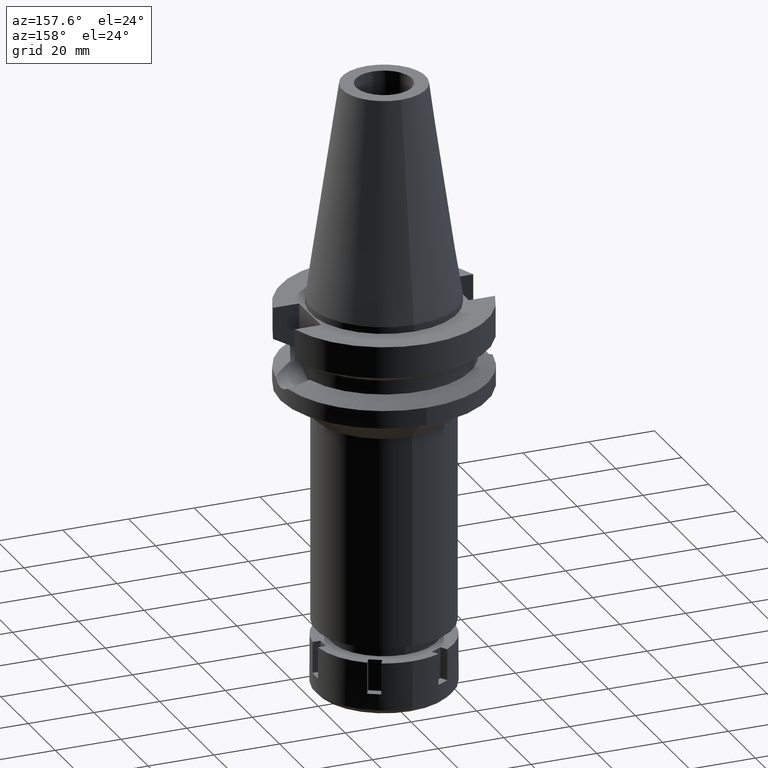
[diagram: clean part render]
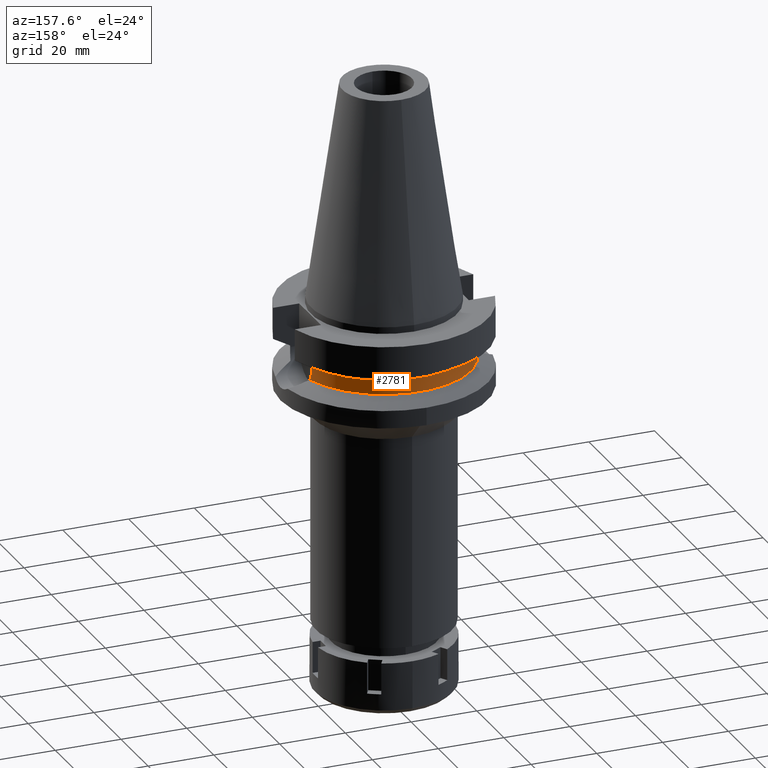
[diagram: same view with one face highlighted and labeled with its STEP entity id]
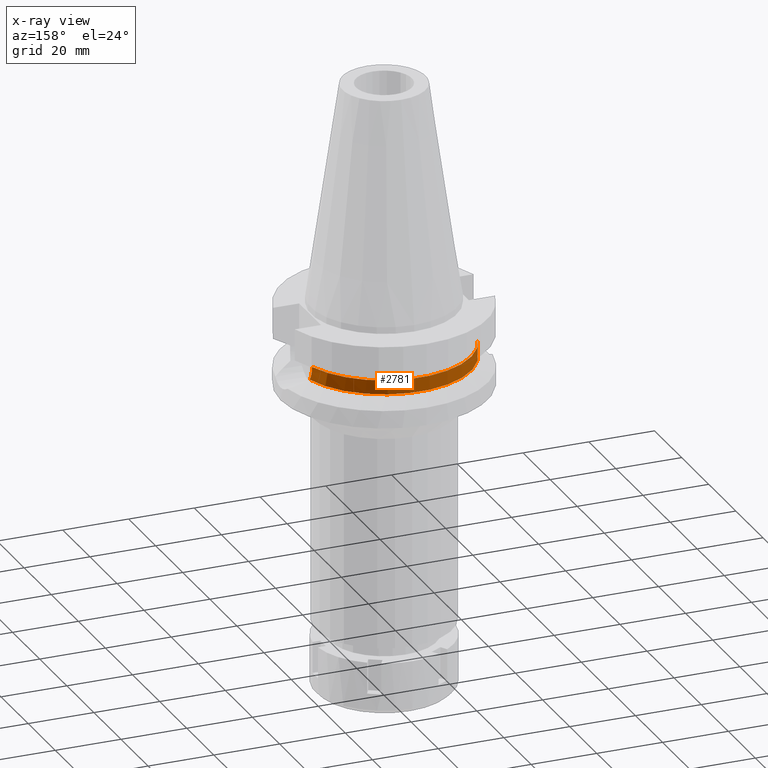
[diagram: x-ray of the same camera — body ghosted, the highlighted face saturated]
A machine part, auxiliary view. The second image highlights one B-rep face of the part: STEP entity #2781.
The next image is the same camera in x-ray: the body ghosted, the highlighted face saturated — about 0% of this face is hidden behind the body in this view.
In plain terms, the highlighted cylindrical surface (partial cylindrical patch) has radius 26.5 mm, axis along (0, 0, -1).
Its self-contained STEP definition (entity closure, byte-faithful):
#33 = CARTESIAN_POINT ( 'NONE',  ( -25.24772266957999634, 8.050000000000018474, -15.26991016306199889 ) ) ;
#119 = ORIENTED_EDGE ( 'NONE', *, *, #1772, .F. ) ;
#138 = ORIENTED_EDGE ( 'NONE', *, *, #2373, .F. ) ;
#217 = VERTEX_POINT ( 'NONE', #2614 ) ;
#226 = DIRECTION ( 'NONE',  ( 0.0000000000000000000, 0.0000000000000000000, -1.000000000000000000 ) ) ;
#251 = FACE_OUTER_BOUND ( 'NONE', #1245, .T. ) ;
#270 = CARTESIAN_POINT ( 'NONE',  ( 25.39161474380841099, 7.584925632688388042, -17.65165132602217213 ) ) ;
#313 = VERTEX_POINT ( 'NONE', #2858 ) ;
#373 = CARTESIAN_POINT ( 'NONE',  ( 25.24772413116000180, 8.049995415955999434, -14.45229202668999946 ) ) ;
#456 = CIRCLE ( 'NONE', #3395, 26.50000000000000000 ) ;
#509 = LINE ( 'NONE', #1957, #1565 ) ;
#534 = DIRECTION ( 'NONE',  ( 0.0000000000000000000, -1.000000000000000000, 0.0000000000000000000 ) ) ;
#568 = CARTESIAN_POINT ( 'NONE',  ( 25.34384339545047737, 7.742469616379023201, -17.15619314850085431 ) ) ;
#576 = CARTESIAN_POINT ( 'NONE',  ( -25.31950825842964292, 7.821518470895145292, -16.85441217854224405 ) ) ;
#650 = EDGE_CURVE ( 'NONE', #217, #1001, #509, .T. ) ;
#773 = CARTESIAN_POINT ( 'NONE',  ( 25.27267991477270215, 7.973333693868347005, -16.24500092433180498 ) ) ;
#789 = CARTESIAN_POINT ( 'NONE',  ( 25.35408314255054663, 7.708964442631086378, -17.26963666352914117 ) ) ;
#834 = CARTESIAN_POINT ( 'NONE',  ( 0.0000000000000000000, 1.065333950388000029E-14, -14.45225699861000024 ) ) ;
#840 = CARTESIAN_POINT ( 'NONE',  ( 25.24772266958000344, 8.050000000000000711, -14.94999999999999929 ) ) ;
#875 = VERTEX_POINT ( 'NONE', #3472 ) ;
#882 = CARTESIAN_POINT ( 'NONE',  ( -25.24772266958000344, 8.050000000000000711, -14.94999999999999929 ) ) ;
#974 = CARTESIAN_POINT ( 'NONE',  ( 0.0000000000000000000, 0.0000000000000000000, -18.74774300138999905 ) ) ;
#980 = CARTESIAN_POINT ( 'NONE',  ( -25.53175183775000079, 7.097862220092999941, -18.74774300138999905 ) ) ;
#1001 = VERTEX_POINT ( 'NONE', #373 ) ;
#1124 = EDGE_CURVE ( 'NONE', #3180, #1001, #1574, .T. ) ;
#1134 = EDGE_CURVE ( 'NONE', #3180, #875, #3337, .T. ) ;
#1157 = CARTESIAN_POINT ( 'NONE',  ( -25.29452346095225934, 7.902092865018188306, -16.48827265655966201 ) ) ;
#1216 = ORIENTED_EDGE ( 'NONE', *, *, #1134, .F. ) ;
#1245 = EDGE_LOOP ( 'NONE', ( #3296, #2399, #119, #2432, #138, #1216 ) ) ;
#1294 = CARTESIAN_POINT ( 'NONE',  ( -25.24772216385000334, 8.050001586148999522, -14.45224487904000021 ) ) ;
#1390 = B_SPLINE_CURVE_WITH_KNOTS ( 'NONE', 3,
 ( #3630, #1902, #2551, #270, #3310, #789, #568, #1415, #2751, #3294, #1960, #773, #2237, #840 ),
 .UNSPECIFIED., .F., .F.,
 ( 4, 2, 2, 1, 1, 2, 2, 4 ),
 ( 0.0000000000000000000, 0.2500000000000011657, 0.3750000000000028311, 0.4375000000000037748, 0.4687500000000027756, 0.4843750000000024425, 0.5000000000000019984, 1.000000000000000000 ),
 .UNSPECIFIED. ) ;
#1398 = AXIS2_PLACEMENT_3D ( 'NONE', #834, #226, #2192 ) ;
#1415 = CARTESIAN_POINT ( 'NONE',  ( 25.33288843118665312, 7.778112047386424699, -17.02510900864709598 ) ) ;
#1501 = EDGE_CURVE ( 'NONE', #313, #2158, #456, .T. ) ;
#1565 = VECTOR ( 'NONE', #1634, 1000.000000000000000 ) ;
#1574 = CIRCLE ( 'NONE', #1398, 26.50000000000000711 ) ;
#1632 = DIRECTION ( 'NONE',  ( 0.0000000000000000000, 0.0000000000000000000, -1.000000000000000000 ) ) ;
#1634 = DIRECTION ( 'NONE',  ( 2.936618771618921028E-06, -9.210308430359751854E-06, 0.9999999999532732664 ) ) ;
#1703 = AXIS2_PLACEMENT_3D ( 'NONE', #3568, #1632, #534 ) ;
#1716 = CARTESIAN_POINT ( 'NONE',  ( -25.30212858955027144, 7.877670097768182167, -16.61040846295115614 ) ) ;
#1772 = EDGE_CURVE ( 'NONE', #313, #217, #1390, .T. ) ;
#1902 = CARTESIAN_POINT ( 'NONE',  ( 25.48480653792046624, 7.266729367422243513, -18.43213561436577308 ) ) ;
#1957 = CARTESIAN_POINT ( 'NONE',  ( 25.24772266958000344, 8.050000000000000711, -14.94999999999999929 ) ) ;
#1960 = CARTESIAN_POINT ( 'NONE',  ( 25.32415423298265722, 7.806459850231466824, -16.91522840168126152 ) ) ;
#1982 = CARTESIAN_POINT ( 'NONE',  ( -25.31648570732019010, 7.831303109277718555, -16.81376729957127125 ) ) ;
#2158 = VERTEX_POINT ( 'NONE', #980 ) ;
#2192 = DIRECTION ( 'NONE',  ( -0.9527442516822307583, 0.3037735849057093818, 0.0000000000000000000 ) ) ;
#2214 = B_SPLINE_CURVE_WITH_KNOTS ( 'NONE', 3,
 ( #882, #33, #2519, #2558, #2291, #1157, #1716, #3638, #1982, #576, #3412, #2504, #2848, #3622 ),
 .UNSPECIFIED., .F., .F.,
 ( 4, 2, 2, 1, 1, 2, 2, 4 ),
 ( 0.0000000000000000000, 0.2499999999999824030, 0.3749999999999749645, 0.4374999999999711897, 0.4687499999999705791, 0.4843749999999713007, 0.4999999999999720224, 1.000000000000000000 ),
 .UNSPECIFIED. ) ;
#2237 = CARTESIAN_POINT ( 'NONE',  ( 25.24772266958000344, 8.049999999999997158, -15.58981081119148193 ) ) ;
#2291 = CARTESIAN_POINT ( 'NONE',  ( -25.28048322354058541, 7.947042364860029018, -16.24399973117504103 ) ) ;
#2373 = EDGE_CURVE ( 'NONE', #875, #2158, #2214, .T. ) ;
#2399 = ORIENTED_EDGE ( 'NONE', *, *, #650, .F. ) ;
#2432 = ORIENTED_EDGE ( 'NONE', *, *, #1501, .T. ) ;
#2491 = CYLINDRICAL_SURFACE ( 'NONE', #1703, 26.50000000000000000 ) ;
#2504 = CARTESIAN_POINT ( 'NONE',  ( -25.36814691286744505, 7.663833599051019796, -17.48802854146694585 ) ) ;
#2519 = CARTESIAN_POINT ( 'NONE',  ( -25.25396277509629783, 8.030907860994284775, -15.59359823563988634 ) ) ;
#2551 = CARTESIAN_POINT ( 'NONE',  ( 25.44390410195637742, 7.408324269918076688, -18.11690676764972352 ) ) ;
#2558 = CARTESIAN_POINT ( 'NONE',  ( -25.27268309164520232, 7.971812745160164582, -16.08115051884209734 ) ) ;
#2559 = CARTESIAN_POINT ( 'NONE',  ( -25.24772216385000334, 8.050001586148999522, -14.45224487904000021 ) ) ;
#2614 = CARTESIAN_POINT ( 'NONE',  ( 25.24772266958000344, 8.050000000000000711, -14.94999999999999929 ) ) ;
#2751 = CARTESIAN_POINT ( 'NONE',  ( 25.32840589093493122, 7.792665650289850809, -16.96921537928767165 ) ) ;
#2781 = ADVANCED_FACE ( 'NONE', ( #251 ), #2491, .T. ) ;
#2796 = DIRECTION ( 'NONE',  ( -1.016018365729005590E-06, -3.186604298395019149E-06, -0.9999999999944066964 ) ) ;
#2848 = CARTESIAN_POINT ( 'NONE',  ( -25.43786288019223818, 7.435590607933135310, -18.11653926700328654 ) ) ;
#2858 = CARTESIAN_POINT ( 'NONE',  ( 25.53175183775000079, 7.097862220092999941, -18.74774300138999905 ) ) ;
#2994 = DIRECTION ( 'NONE',  ( 0.0000000000000000000, 1.000000000000000000, 0.0000000000000000000 ) ) ;
#3180 = VERTEX_POINT ( 'NONE', #1294 ) ;
#3294 = CARTESIAN_POINT ( 'NONE',  ( 25.32546474064105979, 7.802209548897429237, -16.93201787082077203 ) ) ;
#3296 = ORIENTED_EDGE ( 'NONE', *, *, #1124, .T. ) ;
#3310 = CARTESIAN_POINT ( 'NONE',  ( 25.37569567372544910, 7.637836187999782922, -17.49781209657168191 ) ) ;
#3337 = LINE ( 'NONE', #2559, #3513 ) ;
#3395 = AXIS2_PLACEMENT_3D ( 'NONE', #974, #3544, #2994 ) ;
#3412 = CARTESIAN_POINT ( 'NONE',  ( -25.32118071774149826, 7.816100027251812854, -16.87651110714138625 ) ) ;
#3472 = CARTESIAN_POINT ( 'NONE',  ( -25.24772266958000344, 8.050000000000000711, -14.94999999999999929 ) ) ;
#3513 = VECTOR ( 'NONE', #2796, 999.9999999999998863 ) ;
#3544 = DIRECTION ( 'NONE',  ( 0.0000000000000000000, 0.0000000000000000000, 1.000000000000000000 ) ) ;
#3568 = CARTESIAN_POINT ( 'NONE',  ( 0.0000000000000000000, 2.134191976873999699E-14, 74.26999999999999602 ) ) ;
#3622 = CARTESIAN_POINT ( 'NONE',  ( -25.53175183775000079, 7.097862220092999941, -18.74774300138999905 ) ) ;
#3630 = CARTESIAN_POINT ( 'NONE',  ( 25.53175183775000079, 7.097862220092999941, -18.74774300138999905 ) ) ;
#3638 = CARTESIAN_POINT ( 'NONE',  ( -25.31202500689251877, 7.845732311878355958, -16.75278555882618292 ) ) ;